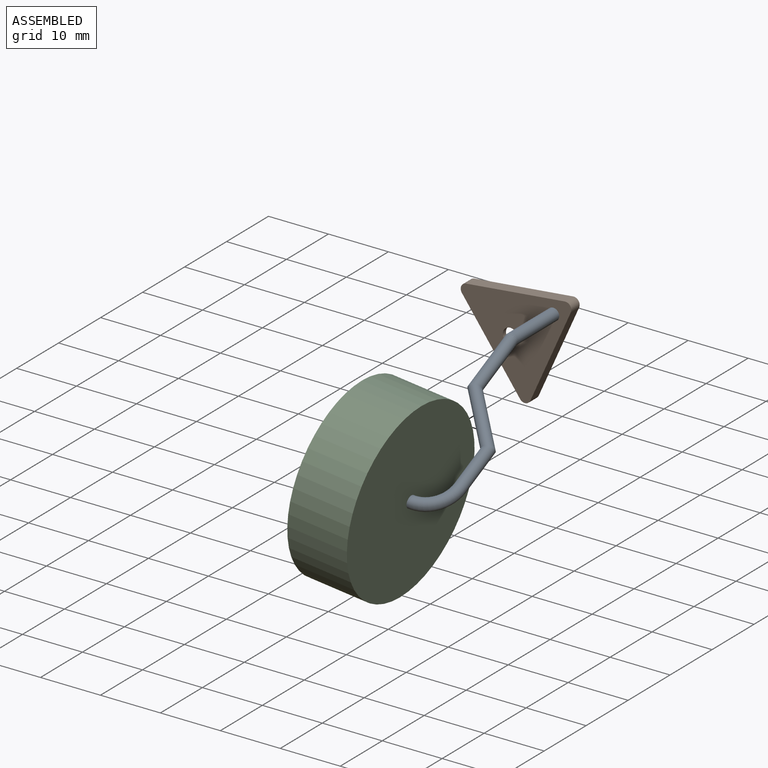
[diagram: assembled view]
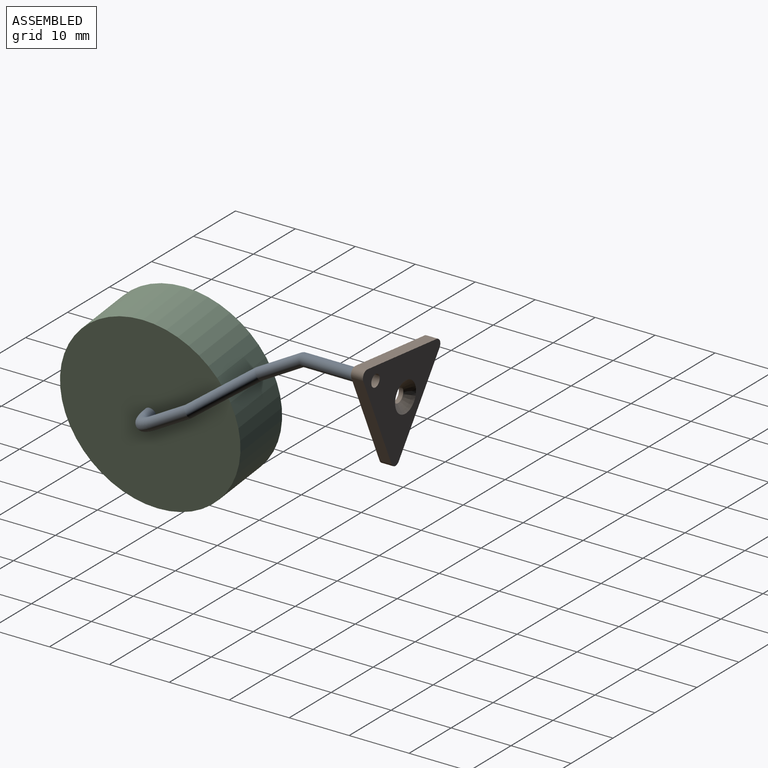
[diagram: assembled view, second angle]
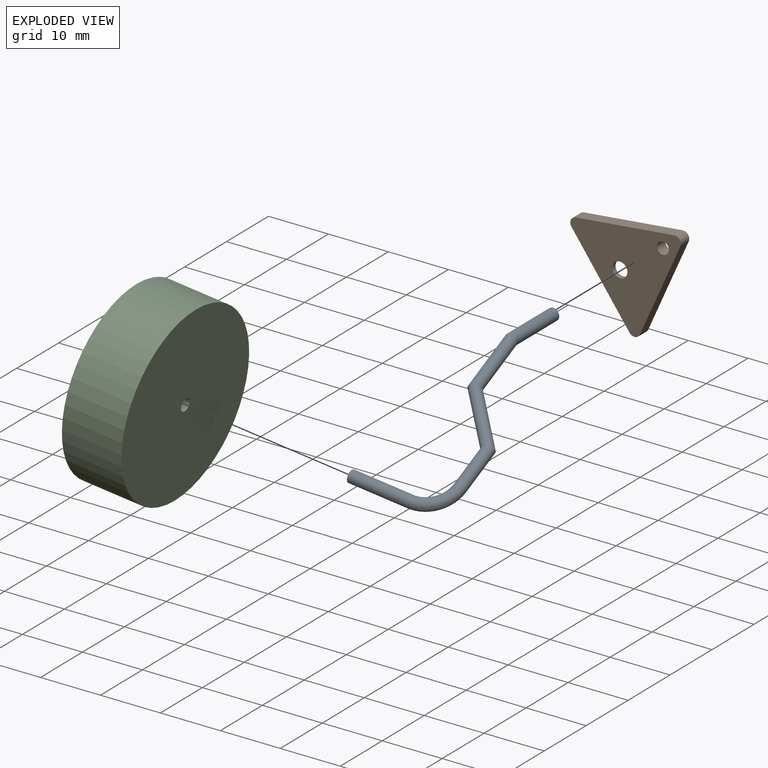
[diagram: exploded view]
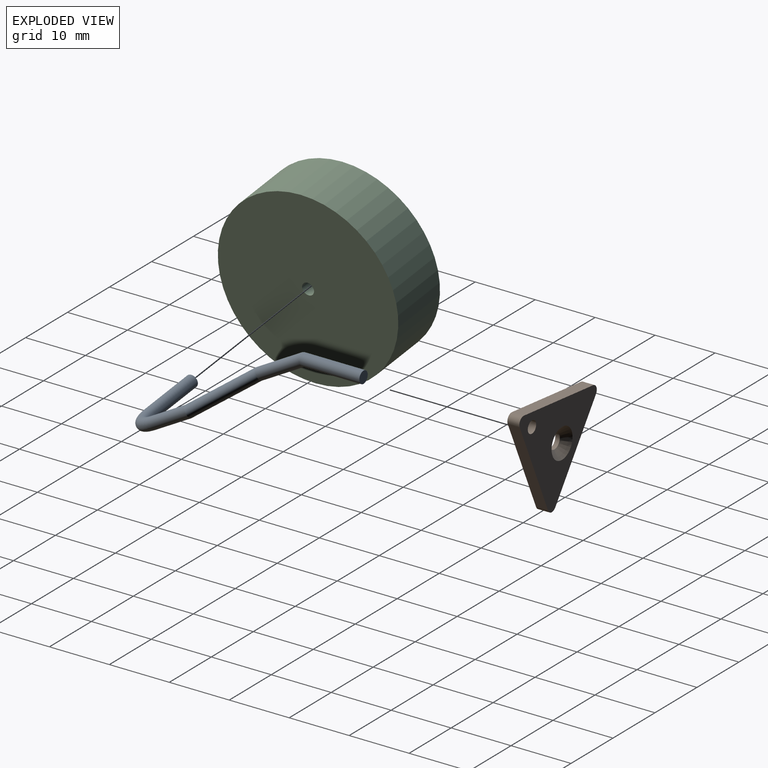
[diagram: exploded view, second angle]
ASSEMBLY  parts=3 mates=2
PART A: 9 faces, bbox 16.5x39.6x6.9 mm
  f0: plane 2x2mm, normal (1,0,0), area 3.1mm2, adj f3
  f1: cylinder r=1mm len=7.32mm, axis (0,-1,0), area 43.5mm2, adj f2,f4
  f2: torus R=5mm, axis (0,0,1), area 49.3mm2, adj f1,f3
  f3: cylinder r=1mm len=10mm, axis (1,0,0), area 62.8mm2, adj f0,f2
  f4: cylinder r=1mm len=9.88mm, axis (-0.69,-0.73,0), area 68.6mm2, adj f1,f5
  f5: cylinder r=1mm len=9.46mm, axis (0,-1,0), area 56.4mm2, adj f4,f7,f8
  f6: plane 2x1.73mm, normal (0,0.87,0.5), area 3.1mm2, adj f7
  f7: cylinder r=1mm len=9.66mm, axis (0,0.87,0.5), area 62.3mm2, adj f5,f6,f8
  f8: sphere r=1mm, area 1mm2, adj f5,f7
PART B: 11 faces, bbox 18.5x16.6x2 mm
  f0: plane 13.99x8.82mm, normal (0.85,0.53,0), area 33.1mm2, adj f1,f6,f7,f8
  f1: cylinder r=1mm len=2mm, axis (0,0,-1), area 4.2mm2, adj f0,f2,f7,f8
  f2: plane 14.63x7.7mm, normal (-0.88,0.47,0), area 33.1mm2, adj f1,f3,f7,f8
  f3: cylinder r=1mm len=2mm, axis (0,0,-1), area 4.2mm2, adj f2,f4,f7,f8
  f4: plane 16.52x2mm, normal (0.04,-1,0), area 33.1mm2, adj f3,f6,f7,f8
  f5: cylinder r=1mm len=2mm, axis (0,0,-1), area 12.6mm2, adj f7,f8
  f6: cylinder r=1mm len=2mm, axis (0,0,-1), area 4.2mm2, adj f0,f4,f7,f8
  f7: plane 18.52x16.63mm, normal (0,0,1), area 148.4mm2, adj f0,f1,f2,f3,f4,f5,f6,f10
  f8: plane 18.52x16.63mm, normal (0,0,-1), area 163.1mm2, adj f0,f1,f2,f3,f4,f5,f6,f9
  f9: cylinder r=1.25mm len=2.5mm, axis (0,0,1), area 5.9mm2, adj f8,f10
  f10: cone r=1.25mm half-angle=45deg, axis (0,0,1), area 20.8mm2, adj f7,f9
PART C: 4 faces, bbox 30x30x10 mm
  f0: cylinder r=1mm len=10mm, axis (0,0,-1), area 62.8mm2, adj f2,f3
  f1: cylinder r=15mm len=30mm, axis (0,0,-1), area 942.5mm2, adj f2,f3
  f2: plane 30x30mm, normal (0,0,1), area 703.7mm2, adj f0,f1
  f3: plane 30x30mm, normal (0,0,-1), area 703.7mm2, adj f0,f1
PLACE A rot(axis=(-0.02,-0.97,-0.26),173.4deg) t=(-42.39,-77.28,2.59)mm
PLACE B rot(axis=(-0.33,-0.67,-0.67),144deg) t=(-48.11,-67.28,-1.56)mm
PLACE C rot(axis=(0,-1,0),83.2deg) t=(-41.63,-102.33,-12.06)mm
MATE revolute A.f3 <-> C.f0  axis (-0.99,0,0.12) through (-51.56,-102.33,-10.87)mm
MATE revolute A.f7 <-> B.f5  axis (0,1,0) through (-42.39,-67.28,2.59)mm
